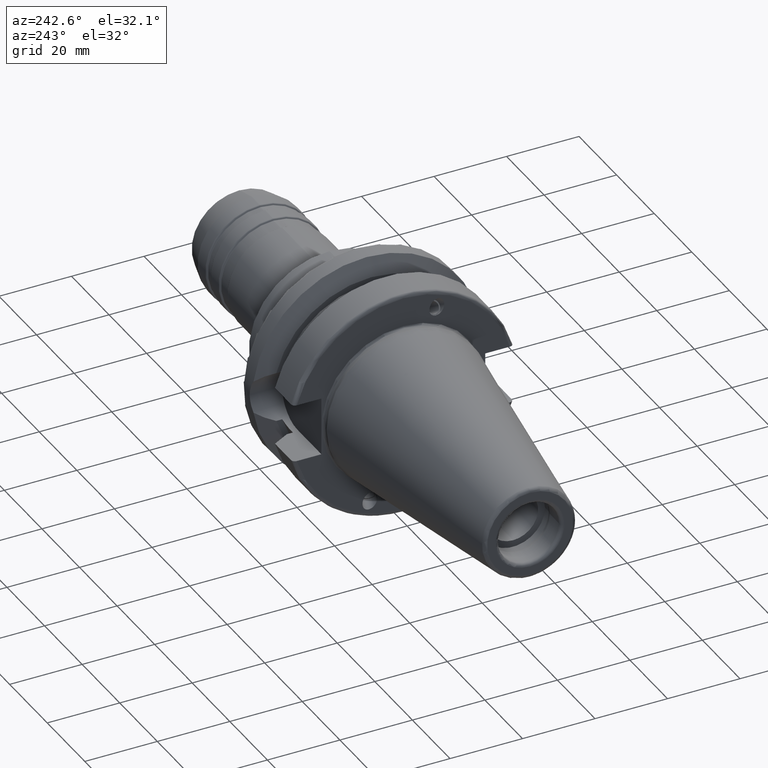
[diagram: clean part render]
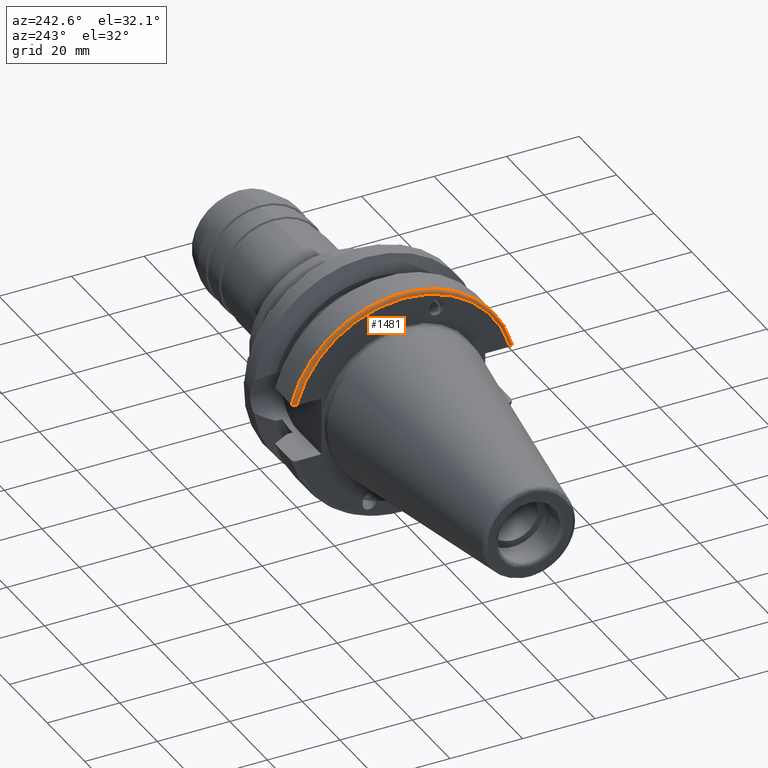
[diagram: same view with one face highlighted and labeled with its STEP entity id]
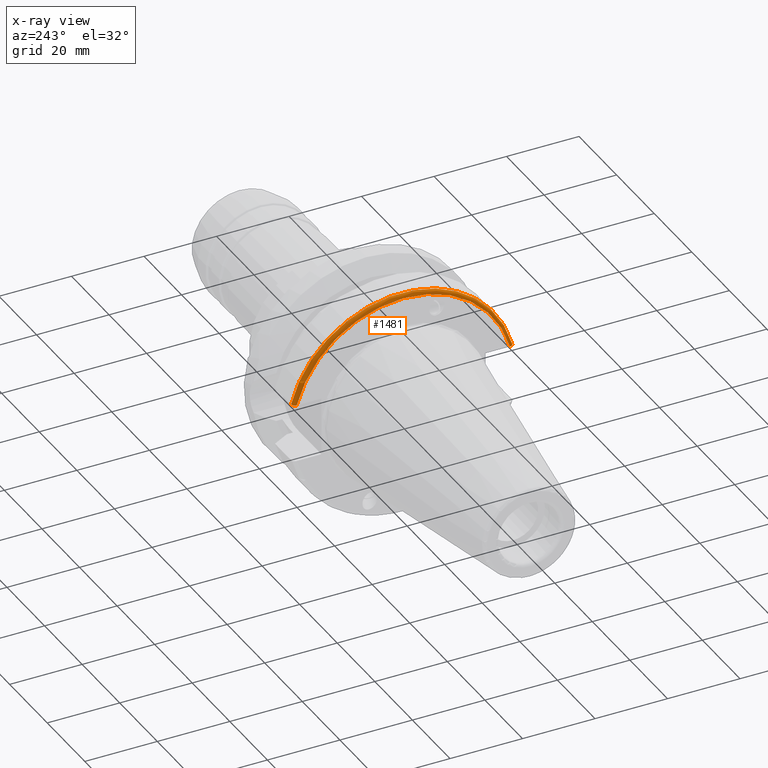
[diagram: x-ray of the same camera — body ghosted, the highlighted face saturated]
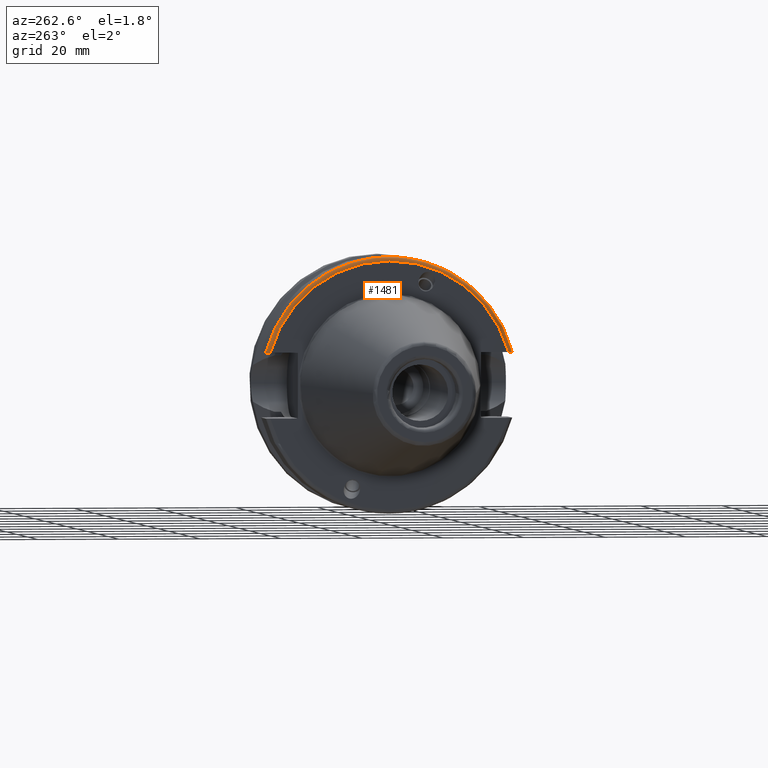
[diagram: same view with one face highlighted and labeled with its STEP entity id]
A machine part, auxiliary view. The second image highlights one B-rep face of the part: STEP entity #1481.
The next image is the same camera in x-ray: the body ghosted, the highlighted face saturated — about 0% of this face is hidden behind the body in this view.
A second angle (auxiliary view) of the same face is appended — the face is thin or edge-on in the first view.
In plain terms, the highlighted toroidal blend (fillet) surface has major radius 30.5 mm and minor (blend) radius 1 mm.
Its self-contained STEP definition (entity closure, byte-faithful):
#73=TOROIDAL_SURFACE('',#1704,30.5,1.00000000000001);
#107=B_SPLINE_CURVE_WITH_KNOTS('',3,(#2665,#2666,#2667,#2668,#2669,#2670,
#2671,#2672,#2673,#2674),.UNSPECIFIED.,.F.,.F.,(4,2,2,2,4),(-0.150751871388631,
-0.111946181815504,-0.0738743445372396,-0.0366169489027566,0.),
 .UNSPECIFIED.);
#115=B_SPLINE_CURVE_WITH_KNOTS('',3,(#2806,#2807,#2808,#2809,#2810,#2811,
#2812,#2813,#2814,#2815),.UNSPECIFIED.,.F.,.F.,(4,2,2,2,4),(0.,0.0366169489027566,
0.0738743445372396,0.111946181815504,0.150751871388631),.UNSPECIFIED.);
#217=FACE_OUTER_BOUND('',#322,.T.);
#322=EDGE_LOOP('',(#1331,#1332,#1333,#1334));
#567=CIRCLE('',#1703,30.5);
#568=CIRCLE('',#1705,31.5);
#663=VERTEX_POINT('',#2662);
#664=VERTEX_POINT('',#2664);
#691=VERTEX_POINT('',#2803);
#692=VERTEX_POINT('',#2805);
#849=EDGE_CURVE('',#664,#663,#107,.T.);
#890=EDGE_CURVE('',#692,#691,#115,.T.);
#921=EDGE_CURVE('',#691,#664,#567,.T.);
#922=EDGE_CURVE('',#692,#663,#568,.T.);
#1331=ORIENTED_EDGE('',*,*,#849,.T.);
#1332=ORIENTED_EDGE('',*,*,#922,.F.);
#1333=ORIENTED_EDGE('',*,*,#890,.T.);
#1334=ORIENTED_EDGE('',*,*,#921,.T.);
#1481=ADVANCED_FACE('',(#217),#73,.T.);
#1703=AXIS2_PLACEMENT_3D('',#2880,#2176,#2177);
#1704=AXIS2_PLACEMENT_3D('',#2881,#2178,#2179);
#1705=AXIS2_PLACEMENT_3D('',#2882,#2180,#2181);
#2176=DIRECTION('center_axis',(1.,0.,0.));
#2177=DIRECTION('ref_axis',(0.,0.,-1.));
#2178=DIRECTION('center_axis',(1.,0.,0.));
#2179=DIRECTION('ref_axis',(0.,-1.22464679914735E-16,1.));
#2180=DIRECTION('center_axis',(1.,0.,0.));
#2181=DIRECTION('ref_axis',(0.,0.,-1.));
#2662=CARTESIAN_POINT('',(2.99999999999999,-30.4540227227866,8.05));
#2664=CARTESIAN_POINT('',(1.99999999999999,-29.4184890842477,8.05));
#2665=CARTESIAN_POINT('Ctrl Pts',(1.99999999999999,-29.4184890842477,8.05));
#2666=CARTESIAN_POINT('Ctrl Pts',(1.99999999999999,-29.5478413828248,8.05));
#2667=CARTESIAN_POINT('Ctrl Pts',(2.02950258743517,-29.7002346307938,8.05));
#2668=CARTESIAN_POINT('Ctrl Pts',(2.12587454939785,-29.9376810968085,8.05));
#2669=CARTESIAN_POINT('Ctrl Pts',(2.2089547883793,-30.0653098968133,8.05));
#2670=CARTESIAN_POINT('Ctrl Pts',(2.38465986426588,-30.2446912007727,8.05));
#2671=CARTESIAN_POINT('Ctrl Pts',(2.50758665841081,-30.3289456947341,8.05));
#2672=CARTESIAN_POINT('Ctrl Pts',(2.73442803339431,-30.4247631098996,8.05));
#2673=CARTESIAN_POINT('Ctrl Pts',(2.87794350365748,-30.4540227227866,8.05));
#2674=CARTESIAN_POINT('Ctrl Pts',(3.,-30.4540227227866,8.05));
#2803=CARTESIAN_POINT('',(1.99999999999999,29.4184890842477,8.05));
#2805=CARTESIAN_POINT('',(2.99999999999999,30.4540227227866,8.05));
#2806=CARTESIAN_POINT('Ctrl Pts',(3.,30.4540227227866,8.05));
#2807=CARTESIAN_POINT('Ctrl Pts',(2.87794350365748,30.4540227227866,8.05));
#2808=CARTESIAN_POINT('Ctrl Pts',(2.73442803339431,30.4247631098996,8.05));
#2809=CARTESIAN_POINT('Ctrl Pts',(2.50758665841081,30.3289456947341,8.05));
#2810=CARTESIAN_POINT('Ctrl Pts',(2.38465986426588,30.2446912007727,8.05));
#2811=CARTESIAN_POINT('Ctrl Pts',(2.2089547883793,30.0653098968133,8.05));
#2812=CARTESIAN_POINT('Ctrl Pts',(2.12587454939785,29.9376810968085,8.05));
#2813=CARTESIAN_POINT('Ctrl Pts',(2.02950258743517,29.7002346307938,8.05));
#2814=CARTESIAN_POINT('Ctrl Pts',(1.99999999999999,29.5478413828248,8.05));
#2815=CARTESIAN_POINT('Ctrl Pts',(1.99999999999999,29.4184890842477,8.05));
#2880=CARTESIAN_POINT('Origin',(1.99999999999999,0.,0.));
#2881=CARTESIAN_POINT('Origin',(3.,0.,0.));
#2882=CARTESIAN_POINT('Origin',(2.99999999999999,0.,0.));